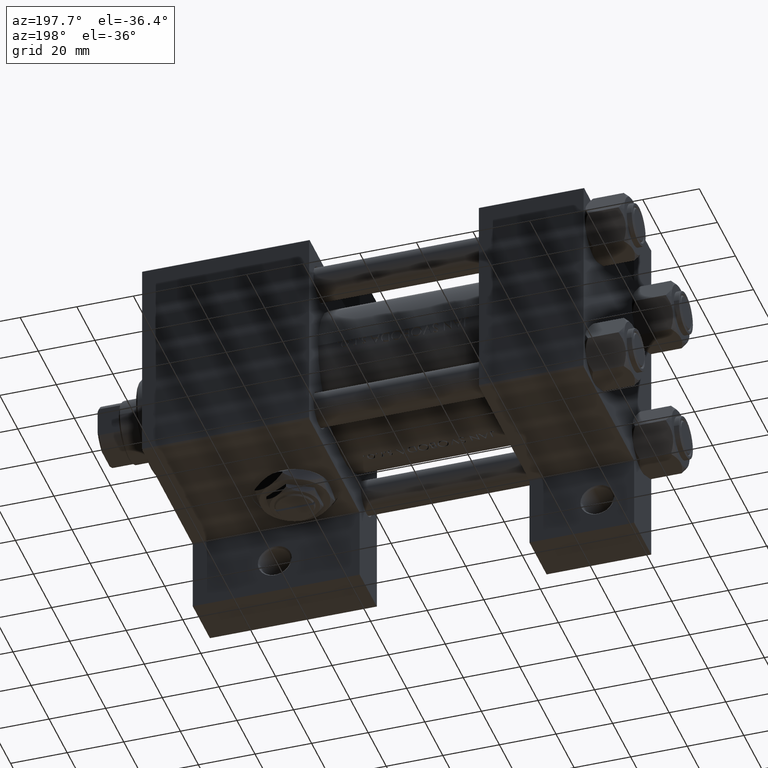
[diagram: clean part render]
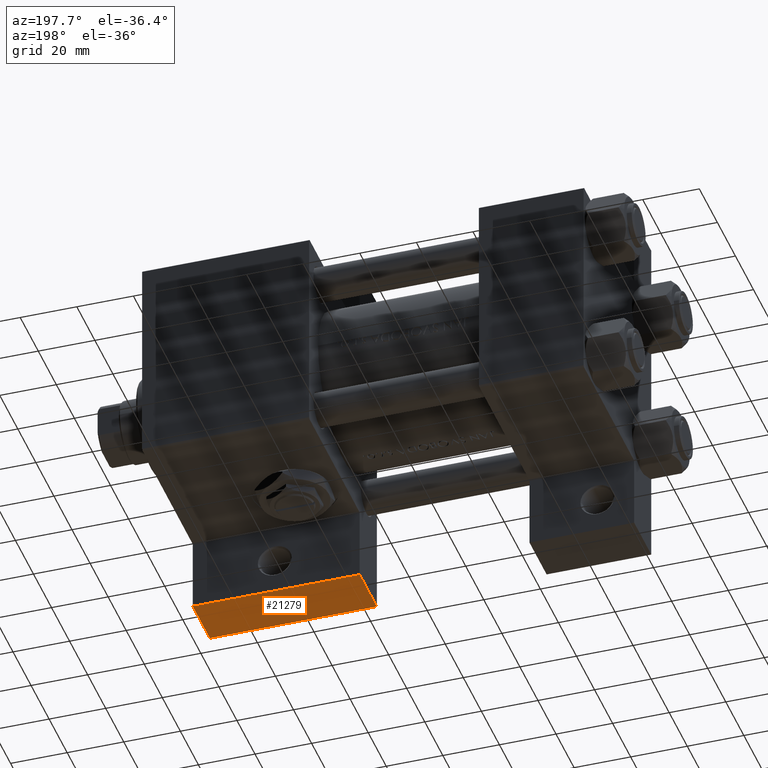
[diagram: same view with one face highlighted and labeled with its STEP entity id]
A machine part, auxiliary view. The second image highlights one B-rep face of the part: STEP entity #21279.
In plain terms, the highlighted planar face has unit normal (0, 0, -1).
Its self-contained STEP definition (entity closure, byte-faithful):
#1489 = VECTOR ( 'NONE', #45806, 1000.000000000000000 ) ;
#4079 = DIRECTION ( 'NONE',  ( 0.000000000000000000, 0.000000000000000000, -1.000000000000000000 ) ) ;
#4440 = CARTESIAN_POINT ( 'NONE',  ( 97.00000000000000000, 63.50000000000000000, -37.50000000000000000 ) ) ;
#7137 = VECTOR ( 'NONE', #17842, 1000.000000000000000 ) ;
#7927 = CARTESIAN_POINT ( 'NONE',  ( 97.00000000000000000, 63.50000000000000000, -18.50000000000000000 ) ) ;
#10115 = LINE ( 'NONE', #14101, #7137 ) ;
#10649 = VECTOR ( 'NONE', #15014, 1000.000000000000000 ) ;
#10892 = VERTEX_POINT ( 'NONE', #48136 ) ;
#11176 = EDGE_CURVE ( 'NONE', #33111, #11400, #12737, .T. ) ;
#11400 = VERTEX_POINT ( 'NONE', #18198 ) ;
#11879 = ORIENTED_EDGE ( 'NONE', *, *, #30530, .F. ) ;
#11900 = DIRECTION ( 'NONE',  ( 0.000000000000000000, -0.000000000000000000, 1.000000000000000000 ) ) ;
#12737 = LINE ( 'NONE', #16478, #22647 ) ;
#14101 = CARTESIAN_POINT ( 'NONE',  ( 97.00000000000000000, 63.50000000000000000, -18.50000000000000000 ) ) ;
#15014 = DIRECTION ( 'NONE',  ( 1.000000000000000000, 0.000000000000000000, 0.000000000000000000 ) ) ;
#16478 = CARTESIAN_POINT ( 'NONE',  ( 156.0000000000000000, 63.50000000000000000, -18.50000000000000000 ) ) ;
#17649 = CARTESIAN_POINT ( 'NONE',  ( 156.0000000000000000, 63.50000000000000000, -18.50000000000000000 ) ) ;
#17842 = DIRECTION ( 'NONE',  ( 0.000000000000000000, 0.000000000000000000, -1.000000000000000000 ) ) ;
#18198 = CARTESIAN_POINT ( 'NONE',  ( 156.0000000000000000, 63.50000000000000000, -37.50000000000000000 ) ) ;
#21279 = ADVANCED_FACE ( 'NONE', ( #30869 ), #23861, .T. ) ;
#22647 = VECTOR ( 'NONE', #4079, 1000.000000000000000 ) ;
#22755 = LINE ( 'NONE', #34215, #10649 ) ;
#23861 = PLANE ( 'NONE',  #37305 ) ;
#26135 = LINE ( 'NONE', #4440, #1489 ) ;
#30530 = EDGE_CURVE ( 'NONE', #47613, #11400, #26135, .T. ) ;
#30869 = FACE_OUTER_BOUND ( 'NONE', #43999, .T. ) ;
#32211 = CARTESIAN_POINT ( 'NONE',  ( 97.00000000000000000, 63.50000000000000000, -37.50000000000000000 ) ) ;
#32541 = ORIENTED_EDGE ( 'NONE', *, *, #33324, .F. ) ;
#33111 = VERTEX_POINT ( 'NONE', #17649 ) ;
#33324 = EDGE_CURVE ( 'NONE', #10892, #47613, #10115, .T. ) ;
#34215 = CARTESIAN_POINT ( 'NONE',  ( 97.00000000000000000, 63.50000000000000000, -18.50000000000000000 ) ) ;
#37305 = AXIS2_PLACEMENT_3D ( 'NONE', #7927, #39065, #11900 ) ;
#39065 = DIRECTION ( 'NONE',  ( -0.000000000000000000, 1.000000000000000000, 0.000000000000000000 ) ) ;
#43154 = EDGE_CURVE ( 'NONE', #10892, #33111, #22755, .T. ) ;
#43999 = EDGE_LOOP ( 'NONE', ( #11879, #32541, #44324, #47784 ) ) ;
#44324 = ORIENTED_EDGE ( 'NONE', *, *, #43154, .T. ) ;
#45806 = DIRECTION ( 'NONE',  ( 1.000000000000000000, 0.000000000000000000, 0.000000000000000000 ) ) ;
#47613 = VERTEX_POINT ( 'NONE', #32211 ) ;
#47784 = ORIENTED_EDGE ( 'NONE', *, *, #11176, .T. ) ;
#48136 = CARTESIAN_POINT ( 'NONE',  ( 97.00000000000000000, 63.50000000000000000, -18.50000000000000000 ) ) ;